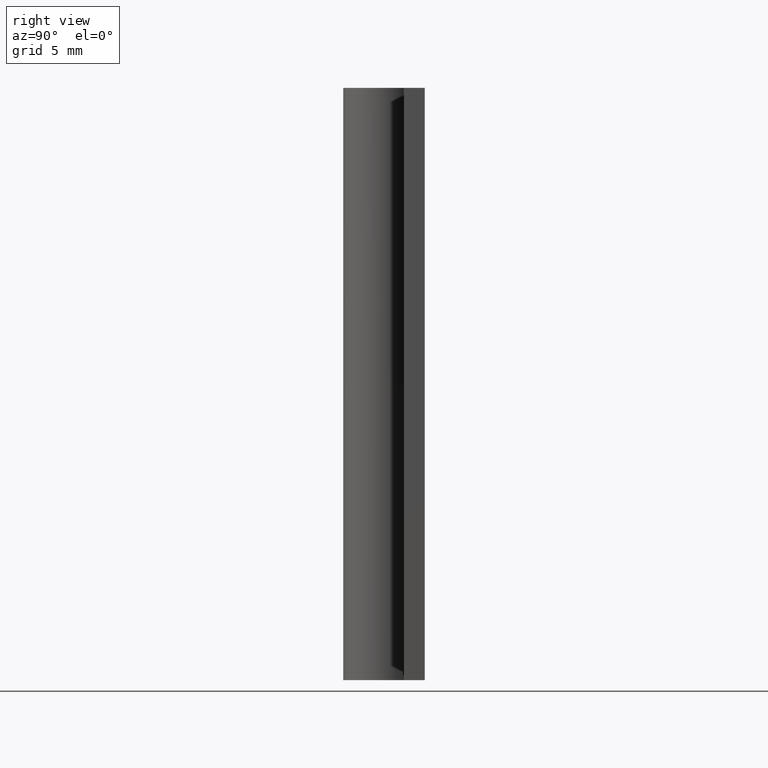
[diagram: clean part render]
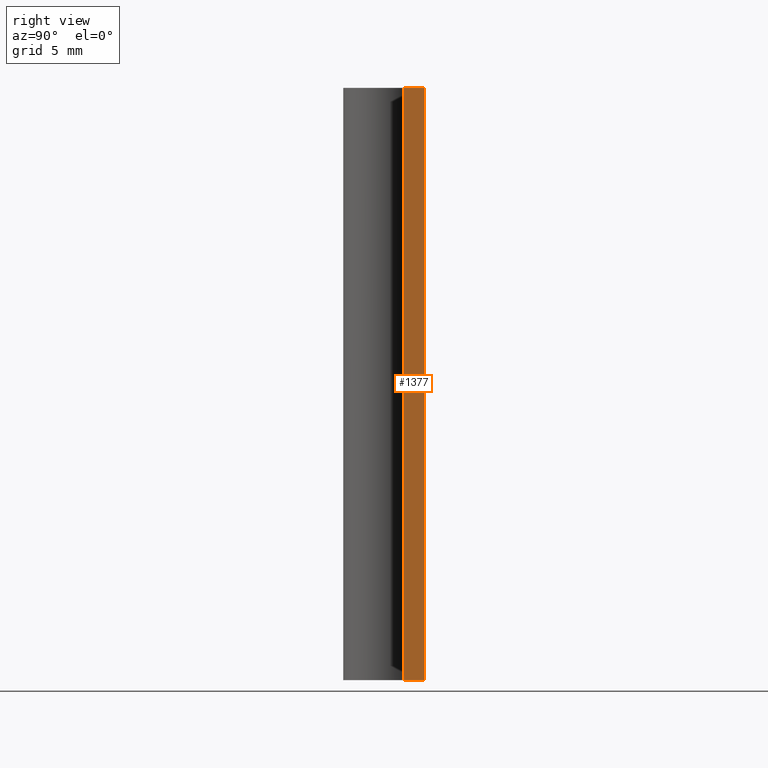
[diagram: same view with one face highlighted and labeled with its STEP entity id]
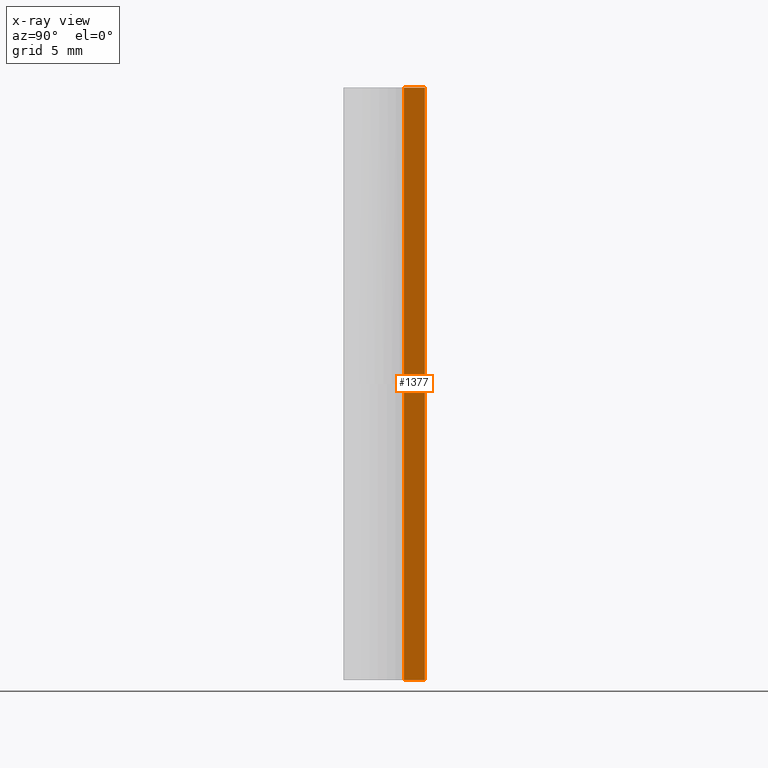
[diagram: x-ray of the same camera — body ghosted, the highlighted face saturated]
A machine part, right view. The second image highlights one B-rep face of the part: STEP entity #1377.
The next image is the same camera in x-ray: the body ghosted, the highlighted face saturated — about 0% of this face is hidden behind the body in this view.
In plain terms, the highlighted face is a freeform B-spline surface patch.
Its self-contained STEP definition (entity closure, byte-faithful):
#1204=CARTESIAN_POINT('',(16.000008000000101,3.100000000000000,45.0));
#1205=VERTEX_POINT('',#1204);
#1212=CARTESIAN_POINT('',(16.000008000000101,1.500000000000000,45.0));
#1213=VERTEX_POINT('',#1212);
#1219=CARTESIAN_POINT('',(16.000008000000101,3.100000000000000,45.0));
#1220=CARTESIAN_POINT('',(16.000008000000101,1.500000000000000,45.0));
#1221=QUASI_UNIFORM_CURVE('',1,(#1219,#1220),.UNSPECIFIED.,.F.,.U.);
#1222=EDGE_CURVE('',#1205,#1213,#1221,.T.);
#1255=CARTESIAN_POINT('',(16.000008000000101,3.100000000000000,0.0));
#1256=VERTEX_POINT('',#1255);
#1262=CARTESIAN_POINT('',(16.000008000000101,1.500000000000000,0.0));
#1263=VERTEX_POINT('',#1262);
#1264=CARTESIAN_POINT('',(16.000008000000101,3.100000000000000,0.0));
#1265=CARTESIAN_POINT('',(16.000008000000101,1.500000000000000,0.0));
#1266=QUASI_UNIFORM_CURVE('',1,(#1264,#1265),.UNSPECIFIED.,.F.,.U.);
#1267=EDGE_CURVE('',#1256,#1263,#1266,.T.);
#1358=CARTESIAN_POINT('',(16.000008000000101,1.420080008817434,-2.247749912781269));
#1359=CARTESIAN_POINT('',(16.000008000000101,1.420080008817434,47.247751119775323));
#1360=CARTESIAN_POINT('',(16.000008000000101,3.179919919656993,-2.247749912781269));
#1361=CARTESIAN_POINT('',(16.000008000000101,3.179919919656993,47.247751119775323));
#1362=B_SPLINE_SURFACE_WITH_KNOTS('',1,1,((#1358,#1360),(#1359,#1361)),.UNSPECIFIED.,.F.,.F.,.U.,(2,2),(2,2),(0.0,49.495501032556589),(0.041708337925747,0.958291624821350),.UNSPECIFIED.);
#1363=ORIENTED_EDGE('',*,*,#1222,.T.);
#1364=CARTESIAN_POINT('',(16.000008000000101,1.500000000000000,0.0));
#1365=CARTESIAN_POINT('',(16.000008000000101,1.500000000000000,45.0));
#1366=QUASI_UNIFORM_CURVE('',1,(#1364,#1365),.UNSPECIFIED.,.F.,.U.);
#1367=EDGE_CURVE('',#1263,#1213,#1366,.T.);
#1368=ORIENTED_EDGE('',*,*,#1367,.F.);
#1369=ORIENTED_EDGE('',*,*,#1267,.F.);
#1370=CARTESIAN_POINT('',(16.000008000000101,3.100000000000000,0.0));
#1371=CARTESIAN_POINT('',(16.000008000000101,3.100000000000000,45.0));
#1372=QUASI_UNIFORM_CURVE('',1,(#1370,#1371),.UNSPECIFIED.,.F.,.U.);
#1373=EDGE_CURVE('',#1256,#1205,#1372,.T.);
#1374=ORIENTED_EDGE('',*,*,#1373,.T.);
#1375=EDGE_LOOP('',(#1363,#1368,#1369,#1374));
#1376=FACE_OUTER_BOUND('',#1375,.T.);
#1377=ADVANCED_FACE('',(#1376),#1362,.F.);